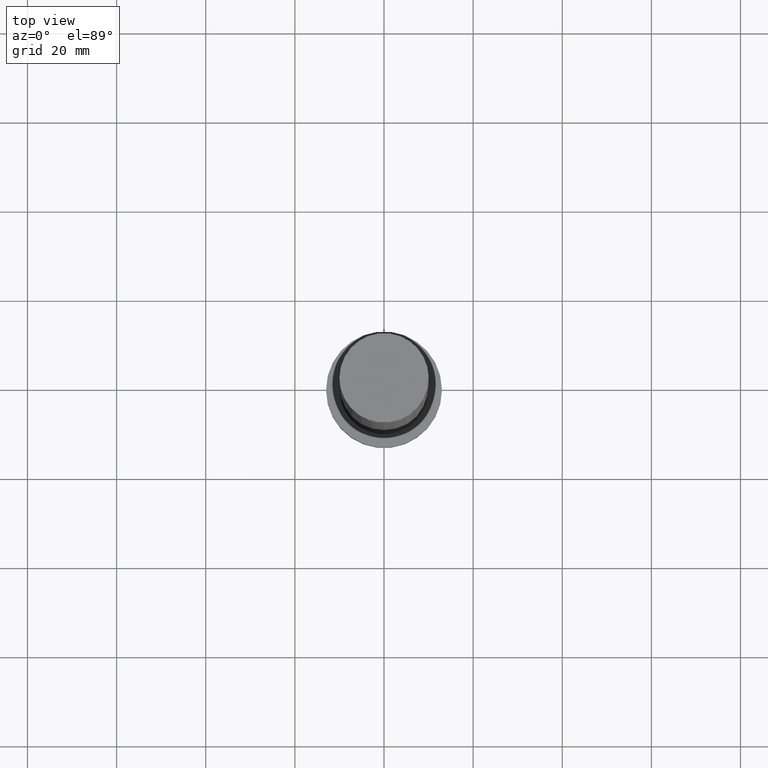
[diagram: clean part render]
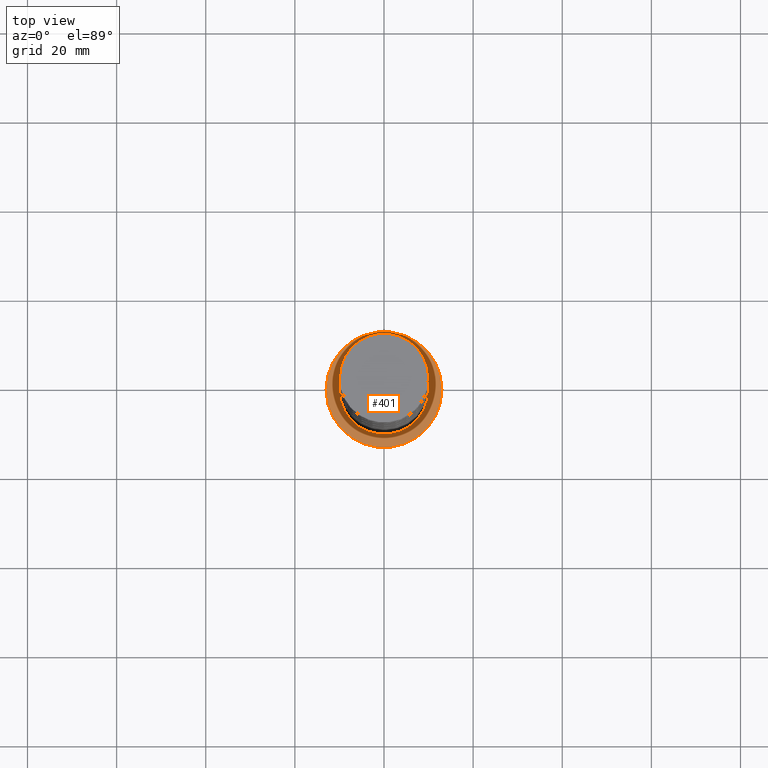
[diagram: same view with one face highlighted and labeled with its STEP entity id]
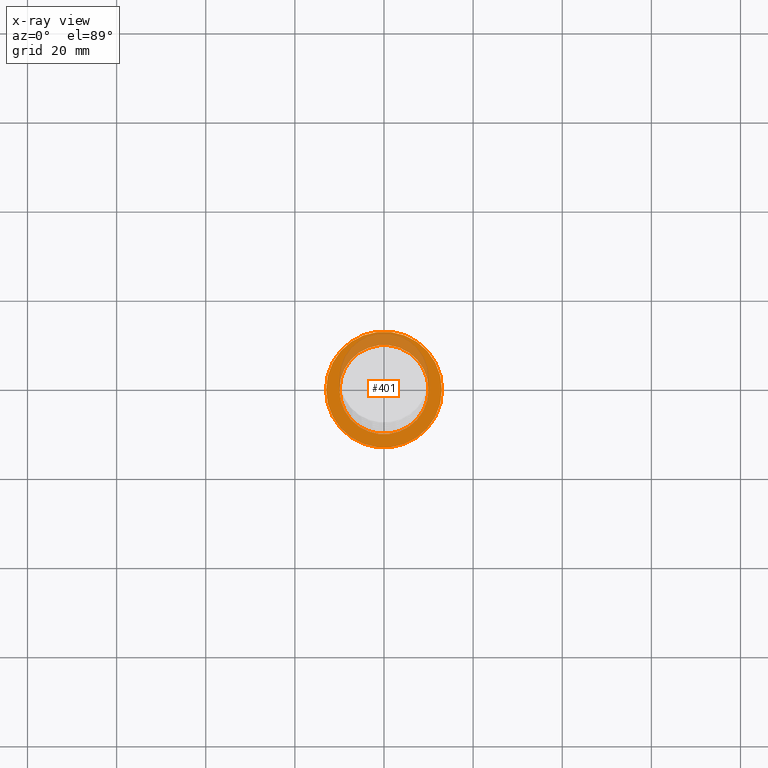
[diagram: x-ray of the same camera — body ghosted, the highlighted face saturated]
A machine part, top view. The second image highlights one B-rep face of the part: STEP entity #401.
The next image is the same camera in x-ray: the body ghosted, the highlighted face saturated — about 25% of this face is hidden behind the body in this view.
In plain terms, the highlighted planar face has unit normal (0, 0, 1).
Its self-contained STEP definition (entity closure, byte-faithful):
#47 = AXIS2_PLACEMENT_3D ( 'NONE', #989, #207, #473 ) ;
#53 = EDGE_CURVE ( 'NONE', #1335, #545, #1584, .T. ) ;
#103 = CIRCLE ( 'NONE', #47, 13.00000000000000178 ) ;
#207 = DIRECTION ( 'NONE',  ( 0.000000000000000000, 0.000000000000000000, 1.000000000000000000 ) ) ;
#258 = CARTESIAN_POINT ( 'NONE',  ( 0.000000000000000000, 0.000000000000000000, 8.000000000000000000 ) ) ;
#267 = CIRCLE ( 'NONE', #1405, 10.00000000000000178 ) ;
#353 = ORIENTED_EDGE ( 'NONE', *, *, #53, .F. ) ;
#399 = EDGE_CURVE ( 'NONE', #1438, #658, #1091, .T. ) ;
#401 = ADVANCED_FACE ( 'NONE', ( #845, #416 ), #959, .T. ) ;
#416 = FACE_OUTER_BOUND ( 'NONE', #1429, .T. ) ;
#463 = CARTESIAN_POINT ( 'NONE',  ( 13.00000000000000178, 1.592040838891559293E-15, 8.000000000000000000 ) ) ;
#465 = DIRECTION ( 'NONE',  ( 0.000000000000000000, 0.000000000000000000, 1.000000000000000000 ) ) ;
#473 = DIRECTION ( 'NONE',  ( 1.000000000000000000, 0.000000000000000000, 0.000000000000000000 ) ) ;
#493 = CARTESIAN_POINT ( 'NONE',  ( 0.000000000000000000, 0.000000000000000000, 8.000000000000000000 ) ) ;
#545 = VERTEX_POINT ( 'NONE', #616 ) ;
#569 = EDGE_CURVE ( 'NONE', #658, #1438, #103, .T. ) ;
#616 = CARTESIAN_POINT ( 'NONE',  ( 10.00000000000000178, 1.224646799147353454E-15, 8.000000000000000000 ) ) ;
#657 = DIRECTION ( 'NONE',  ( 1.000000000000000000, 0.000000000000000000, 0.000000000000000000 ) ) ;
#658 = VERTEX_POINT ( 'NONE', #1144 ) ;
#823 = ORIENTED_EDGE ( 'NONE', *, *, #1110, .F. ) ;
#842 = AXIS2_PLACEMENT_3D ( 'NONE', #1381, #973, #1360 ) ;
#845 = FACE_BOUND ( 'NONE', #1083, .T. ) ;
#959 = PLANE ( 'NONE',  #1371 ) ;
#973 = DIRECTION ( 'NONE',  ( 0.000000000000000000, 0.000000000000000000, 1.000000000000000000 ) ) ;
#989 = CARTESIAN_POINT ( 'NONE',  ( 0.000000000000000000, 0.000000000000000000, 8.000000000000000000 ) ) ;
#1027 = DIRECTION ( 'NONE',  ( 0.000000000000000000, 0.000000000000000000, 1.000000000000000000 ) ) ;
#1083 = EDGE_LOOP ( 'NONE', ( #353, #823 ) ) ;
#1091 = CIRCLE ( 'NONE', #842, 13.00000000000000178 ) ;
#1110 = EDGE_CURVE ( 'NONE', #545, #1335, #267, .T. ) ;
#1136 = CARTESIAN_POINT ( 'NONE',  ( 0.000000000000000000, 0.000000000000000000, 8.000000000000000000 ) ) ;
#1137 = AXIS2_PLACEMENT_3D ( 'NONE', #493, #465, #1355 ) ;
#1144 = CARTESIAN_POINT ( 'NONE',  ( -13.00000000000000178, 0.000000000000000000, 8.000000000000000000 ) ) ;
#1235 = CARTESIAN_POINT ( 'NONE',  ( -10.00000000000000178, 0.000000000000000000, 8.000000000000000000 ) ) ;
#1298 = DIRECTION ( 'NONE',  ( 1.000000000000000000, 0.000000000000000000, -0.000000000000000000 ) ) ;
#1299 = DIRECTION ( 'NONE',  ( 0.000000000000000000, 0.000000000000000000, 1.000000000000000000 ) ) ;
#1335 = VERTEX_POINT ( 'NONE', #1235 ) ;
#1355 = DIRECTION ( 'NONE',  ( 1.000000000000000000, 0.000000000000000000, 0.000000000000000000 ) ) ;
#1360 = DIRECTION ( 'NONE',  ( 1.000000000000000000, 0.000000000000000000, 0.000000000000000000 ) ) ;
#1371 = AXIS2_PLACEMENT_3D ( 'NONE', #1136, #1027, #1298 ) ;
#1381 = CARTESIAN_POINT ( 'NONE',  ( 0.000000000000000000, 0.000000000000000000, 8.000000000000000000 ) ) ;
#1405 = AXIS2_PLACEMENT_3D ( 'NONE', #258, #1299, #657 ) ;
#1429 = EDGE_LOOP ( 'NONE', ( #1657, #1555 ) ) ;
#1438 = VERTEX_POINT ( 'NONE', #463 ) ;
#1555 = ORIENTED_EDGE ( 'NONE', *, *, #399, .T. ) ;
#1584 = CIRCLE ( 'NONE', #1137, 10.00000000000000178 ) ;
#1657 = ORIENTED_EDGE ( 'NONE', *, *, #569, .T. ) ;